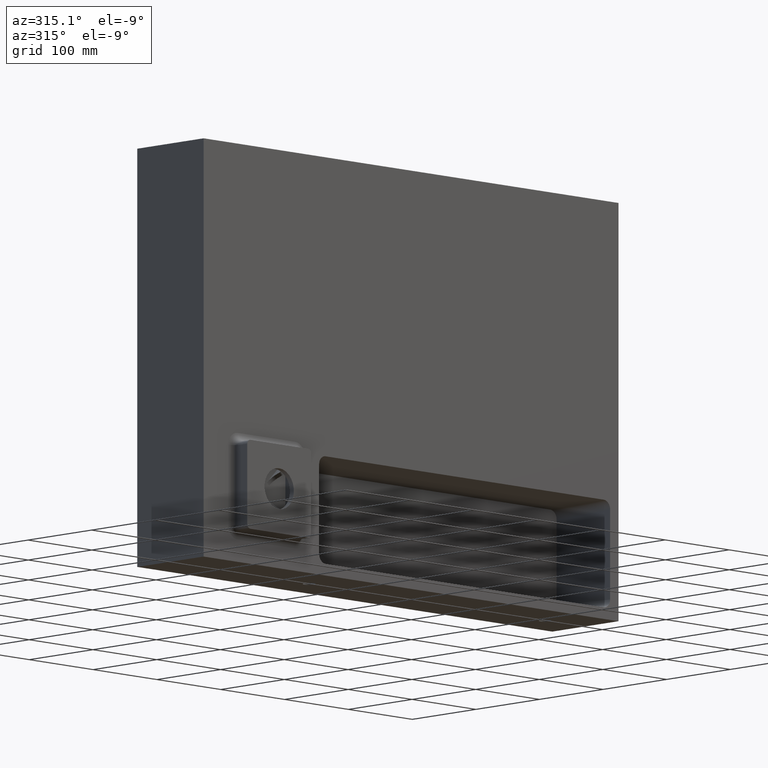
[diagram: clean part render]
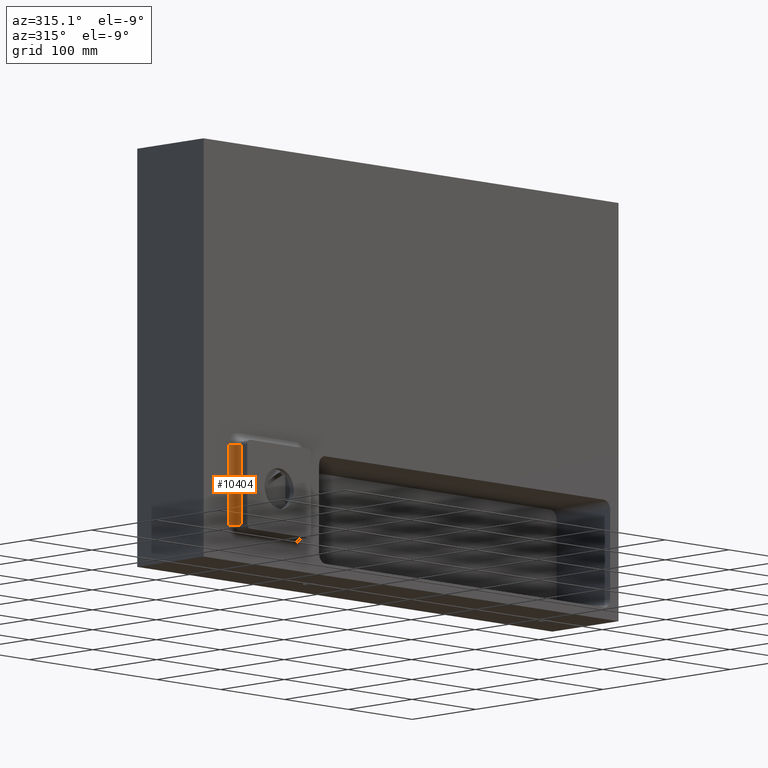
[diagram: same view with one face highlighted and labeled with its STEP entity id]
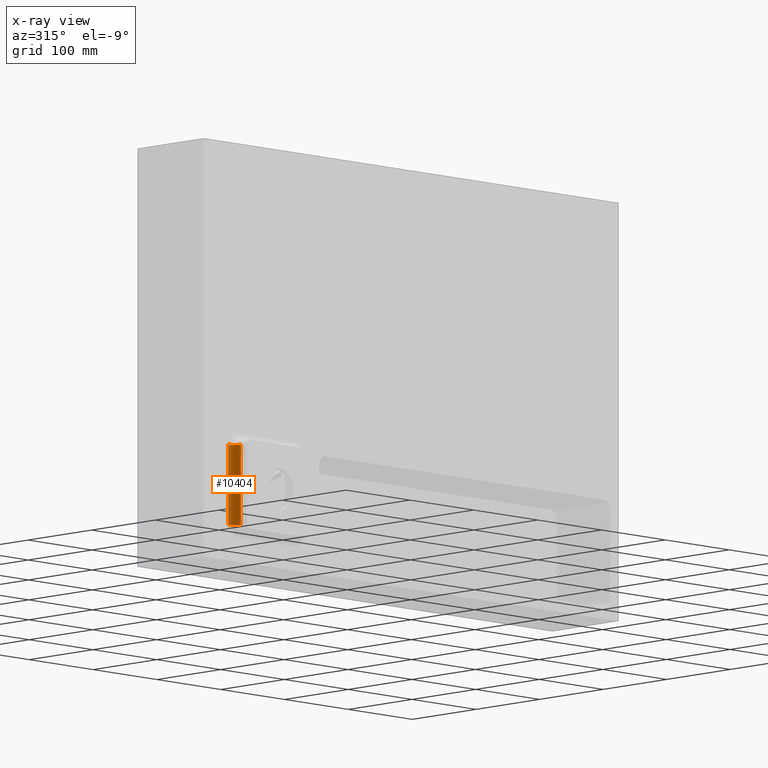
[diagram: x-ray of the same camera — body ghosted, the highlighted face saturated]
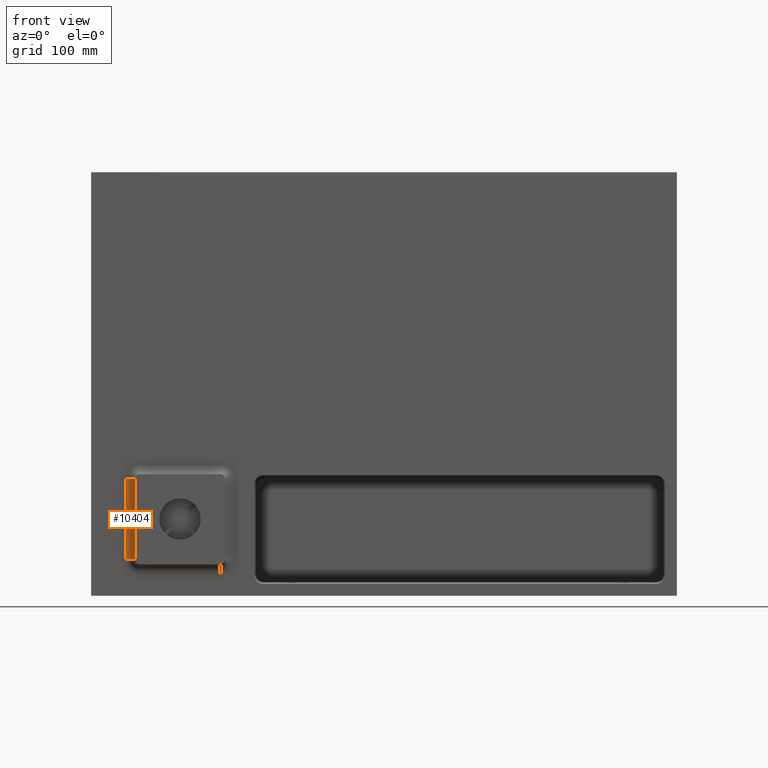
[diagram: same view with one face highlighted and labeled with its STEP entity id]
A machine part, auxiliary view. The second image highlights one B-rep face of the part: STEP entity #10404.
The next image is the same camera in x-ray: the body ghosted, the highlighted face saturated — about 0% of this face is hidden behind the body in this view.
A second angle (front view) of the same face is appended — the face is thin or edge-on in the first view.
In plain terms, the highlighted cylindrical surface (edge-blend (fillet) strip) has radius 10 mm, axis along (0, 0, -1).
Its self-contained STEP definition (entity closure, byte-faithful):
#446 = DIRECTION ( 'NONE',  ( 1.000000000000000000, 0.0000000000000000000, 0.0000000000000000000 ) ) ;
#458 = DIRECTION ( 'NONE',  ( 0.0000000000000000000, 0.0000000000000000000, 1.000000000000000000 ) ) ;
#460 = CARTESIAN_POINT ( 'NONE',  ( -286.4897232033667933, -10.00000000000000000, -105.0000000000000142 ) ) ;
#1400 = AXIS2_PLACEMENT_3D ( 'NONE', #460, #458, #446 ) ;
#1487 = EDGE_CURVE ( 'NONE', #3250, #6427, #6747, .T. ) ;
#2126 = ORIENTED_EDGE ( 'NONE', *, *, #9239, .T. ) ;
#2146 = ORIENTED_EDGE ( 'NONE', *, *, #7019, .F. ) ;
#2166 = ORIENTED_EDGE ( 'NONE', *, *, #7149, .F. ) ;
#2176 = ORIENTED_EDGE ( 'NONE', *, *, #1487, .F. ) ;
#2679 = CARTESIAN_POINT ( 'NONE',  ( -286.4897232033667933, 0.0000000000000000000, -194.9999999999999716 ) ) ;
#2714 = VERTEX_POINT ( 'NONE', #2679 ) ;
#2838 = EDGE_LOOP ( 'NONE', ( #2126, #2146, #2166, #2176 ) ) ;
#3023 = DIRECTION ( 'NONE',  ( 1.000000000000000000, 0.0000000000000000000, 0.0000000000000000000 ) ) ;
#3034 = DIRECTION ( 'NONE',  ( 0.0000000000000000000, 0.0000000000000000000, 1.000000000000000000 ) ) ;
#3038 = CARTESIAN_POINT ( 'NONE',  ( -286.4897232033667933, -10.00000000000000000, -194.9999999999999716 ) ) ;
#3250 = VERTEX_POINT ( 'NONE', #8510 ) ;
#3302 = VERTEX_POINT ( 'NONE', #8306 ) ;
#3356 = DIRECTION ( 'NONE',  ( 0.0000000000000000000, 0.0000000000000000000, -1.000000000000000000 ) ) ;
#3445 = DIRECTION ( 'NONE',  ( -0.0000000000000000000, -0.0000000000000000000, 1.000000000000000000 ) ) ;
#3455 = VECTOR ( 'NONE', #3445, 1000.000000000000000 ) ;
#3457 = CARTESIAN_POINT ( 'NONE',  ( -286.4897232033667933, 0.0000000000000000000, -0.0000000000000000000 ) ) ;
#3470 = LINE ( 'NONE', #3457, #3455 ) ;
#4217 = FACE_OUTER_BOUND ( 'NONE', #2838, .T. ) ;
#4379 = AXIS2_PLACEMENT_3D ( 'NONE', #3038, #3034, #3023 ) ;
#4474 = VECTOR ( 'NONE', #6707, 1000.000000000000000 ) ;
#6427 = VERTEX_POINT ( 'NONE', #6880 ) ;
#6707 = DIRECTION ( 'NONE',  ( 0.0000000000000000000, 0.0000000000000000000, -1.000000000000000000 ) ) ;
#6721 = CARTESIAN_POINT ( 'NONE',  ( -276.4897232033667933, -10.00000000000000000, -105.0000000000000142 ) ) ;
#6747 = LINE ( 'NONE', #6721, #4474 ) ;
#6880 = CARTESIAN_POINT ( 'NONE',  ( -276.4897232033667933, -10.00000000000000000, -194.9999999999999716 ) ) ;
#6944 = DIRECTION ( 'NONE',  ( -1.000000000000000000, 0.0000000000000000000, 0.0000000000000000000 ) ) ;
#7019 = EDGE_CURVE ( 'NONE', #2714, #3302, #3470, .T. ) ;
#7149 = EDGE_CURVE ( 'NONE', #6427, #2714, #9190, .T. ) ;
#7721 = CYLINDRICAL_SURFACE ( 'NONE', #11061, 10.00000000000000888 ) ;
#8306 = CARTESIAN_POINT ( 'NONE',  ( -286.4897232033667933, 0.0000000000000000000, -105.0000000000000142 ) ) ;
#8510 = CARTESIAN_POINT ( 'NONE',  ( -276.4897232033667933, -10.00000000000000000, -105.0000000000000142 ) ) ;
#9190 = CIRCLE ( 'NONE', #4379, 10.00000000000000888 ) ;
#9239 = EDGE_CURVE ( 'NONE', #3250, #3302, #11054, .T. ) ;
#10404 = ADVANCED_FACE ( 'NONE', ( #4217 ), #7721, .F. ) ;
#10928 = CARTESIAN_POINT ( 'NONE',  ( -286.4897232033667933, -10.00000000000000000, -105.0000000000000142 ) ) ;
#11054 = CIRCLE ( 'NONE', #1400, 10.00000000000000888 ) ;
#11061 = AXIS2_PLACEMENT_3D ( 'NONE', #10928, #3356, #6944 ) ;